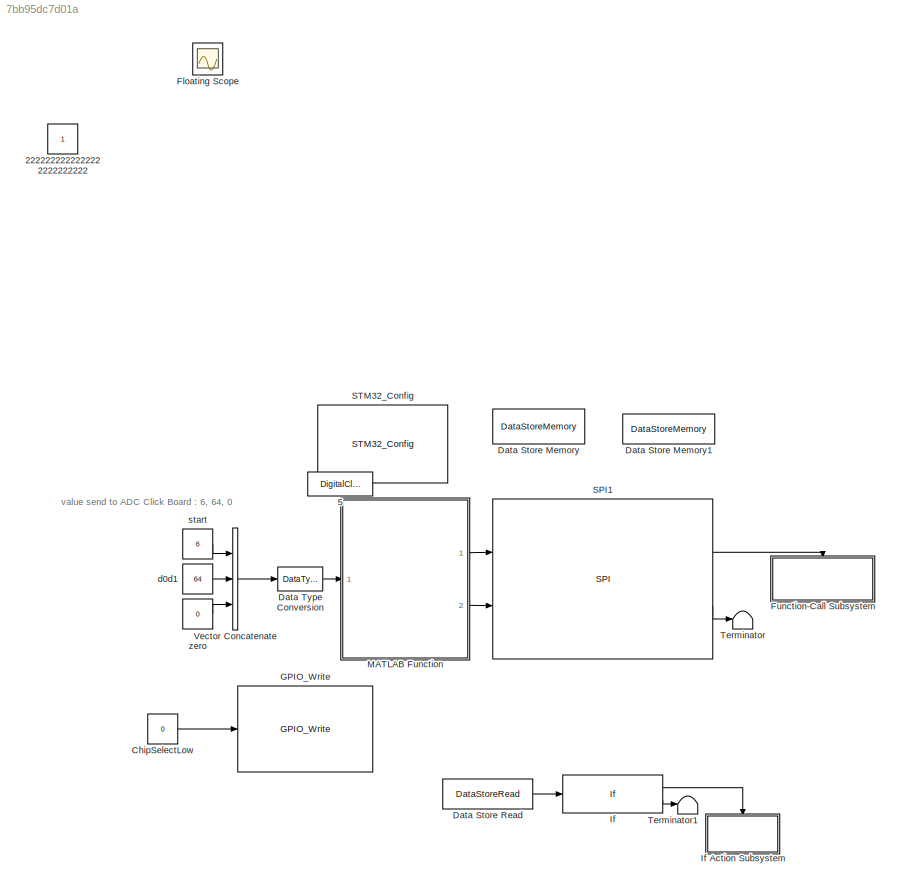
MODEL slx_7bb95dc7d01a
KIND model
CONFIG AbsTol = auto
CONFIG EnableMultiTasking = on
CONFIG FixedStep = 0.5
CONFIG MaxStep = auto
CONFIG MinStep = auto
CONFIG RelTol = 1e-3
CONFIG SampleTimeConstraint = Unconstrained
CONFIG Solver = FixedStepDiscrete
CONFIG SolverName = FixedStepDiscrete
CONFIG StartTime = 0.0
CONFIG StopTime = 10.0
BLOCK [Constant] 2222222222222222222222222
  IOType = siggen
BLOCK [DigitalClock] 5
  IOType = siggen
BLOCK [Constant] ChipSelectLow
  Value = 0
BLOCK [DataStoreMemory] Data Store Memory
  DataStoreName = SPI_Data_addr
  OutDataTypeStr = uint32
  ReadBeforeWriteMsg = warning
  ShowAdditionalParam = off
  WriteAfterReadMsg = warning
  WriteAfterWriteMsg = warning
BLOCK [DataStoreMemory] Data Store Memory1
  DataStoreName = NbRcv
  OutDataTypeStr = uint16
  ReadBeforeWriteMsg = warning
  ShowAdditionalParam = off
  WriteAfterReadMsg = warning
  WriteAfterWriteMsg = warning
BLOCK [DataStoreRead] Data Store Read
  DataStoreName = NbRcv
  Ports = [0, 1]
BLOCK [DataTypeConversion] Data Type Conversion
  OutDataTypeStr = uint8
  RndMeth = Floor
  SaturateOnIntegerOverflow = off
BLOCK [Scope] Floating Scope
  Floating = off
  IOType = viewer
  NumInputPorts = 1
  Ports = []
  ScopeSpecificationString = C++SS(StrPVP('Location','[376, 294, 700, 533]'),StrPVP('Open','off'),MxPVP('AxesTitles',53,'struct(''axes1'',''%<SignalLabel>'')'),MxPVP('ScopeGraphics',56,'struct(''FigureColor'',''[0.5 0.5 0.5]'',''AxesColor'',''[0 0 0]'',''AxesTickColor'',''[1 1 1]'',''LineColors'',''[1 1 0;1 0 1;0 1 1;1 0 0;0 1 0;0 0 1]'',''LineStyles'',''-|-|-|-|-|-'',''LineWidths'',''[0.5 0.5 0.5 0.5 0.5 0.5]'',''MarkerStyle...<+239ch>
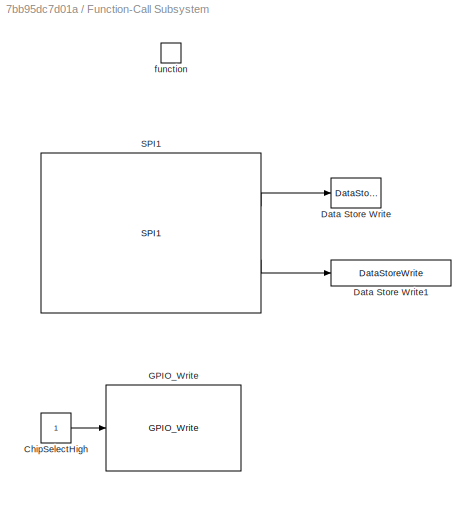
BLOCK [SubSystem] Function-Call Subsystem
  Ports = [0, 0, 0, 1]
  RequestExecContextInheritance = off
  TreatAsAtomicUnit = on
BLOCK [Constant] Function-Call Subsystem/ChipSelectHigh
BLOCK [DataStoreWrite] Function-Call Subsystem/Data Store Write
  DataStoreName = NbRcv
  Ports = [1]
BLOCK [DataStoreWrite] Function-Call Subsystem/Data Store Write1
  DataStoreName = SPI_Data_addr
  Ports = [1]
BLOCK [Reference] Function-Call Subsystem/GPIO_Write  REF=GPIO_Lib/GPIO_Write
  Ports = [1]
  SourceBlock = GPIO_Lib/GPIO_Write
  SourceProductName = Target Support Package - STM32 Adapter
  SourceType = GPIO_Write
BLOCK [Reference] Function-Call Subsystem/SPI1  REF=SPI_Lib/SPI1
  Ports = [0, 2]
  SourceBlock = SPI_Lib/SPI1
  SourceProductName = Target Support Package - STM32 Adapter
  SourceType = SPI
BLOCK [TriggerPort] Function-Call Subsystem/function
  Ports = []
  StatesWhenEnabling = held
  TriggerType = function-call
  VariantControl = Variant
BLOCK [Reference] GPIO_Write  REF=GPIO_Lib/GPIO_Write
  Ports = [1]
  Priority = 1
  SourceBlock = GPIO_Lib/GPIO_Write
  SourceProductName = Target Support Package - STM32 Adapter
  SourceType = GPIO_Write
BLOCK [If] If
  Ports = [1, 2]
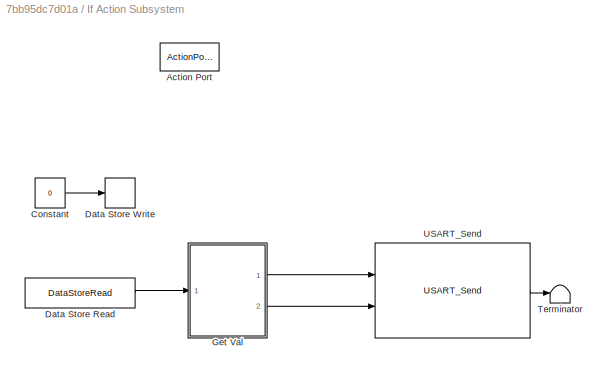
BLOCK [SubSystem] If Action Subsystem
  Ports = [0, 0, 0, 0, 0, 0, 0, 1]
  RequestExecContextInheritance = off
  TreatAsAtomicUnit = on
BLOCK [ActionPort] If Action Subsystem/Action Port
  ActionType = then
BLOCK [Constant] If Action Subsystem/Constant
  OutDataTypeStr = uint16
  Value = 0
BLOCK [DataStoreRead] If Action Subsystem/Data Store Read
  DataStoreName = SPI_Data_addr
  Ports = [0, 1]
BLOCK [DataStoreWrite] If Action Subsystem/Data Store Write
  DataStoreName = NbRcv
  Ports = [1]
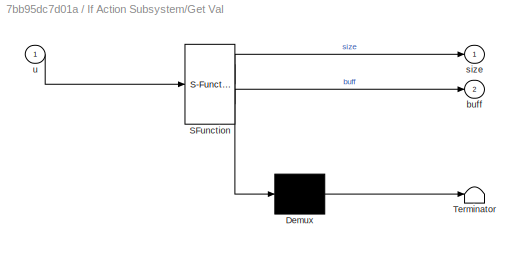
BLOCK [SubSystem] If Action Subsystem/Get Val
  ErrorFcn = Stateflow.Translate.translate
  PermitHierarchicalResolution = ExplicitOnly
  Ports = [1, 2]
  RequestExecContextInheritance = off
  SFBlockType = MATLAB Function
  TreatAsAtomicUnit = on
BLOCK [Demux] If Action Subsystem/Get Val/ Demux 
  Outputs = 1
  Ports = [1, 1]
BLOCK [S-Function] If Action Subsystem/Get Val/ SFunction 
  EnableBusSupport = on
  FunctionName = sf_sfun
  PortCounts = [1 3]
  Ports = [1, 3]
  SFcnIsStateOwnerBlock = off
  SFunctionDeploymentMode = off
  Tag = Stateflow S-Function SPI_Test 1
BLOCK [Terminator] If Action Subsystem/Get Val/ Terminator 
BLOCK [Outport] If Action Subsystem/Get Val/buff
  IconDisplay = Port number
  Port = 2
BLOCK [Outport] If Action Subsystem/Get Val/size
  IconDisplay = Port number
BLOCK [Inport] If Action Subsystem/Get Val/u
  IconDisplay = Port number
BLOCK [Terminator] If Action Subsystem/Terminator
BLOCK [Reference] If Action Subsystem/USART_Send  REF=USART_Lib/USART_Send
  Ports = [2, 1]
  SourceBlock = USART_Lib/USART_Send
  SourceProductName = Target Support Package - STM32 Adapter
  SourceType = USART_Send
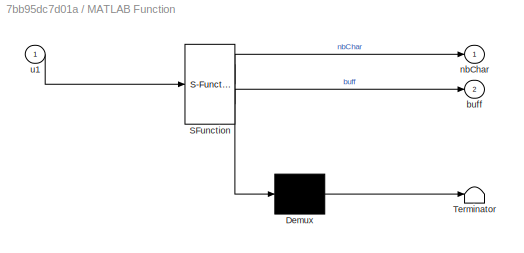
BLOCK [SubSystem] MATLAB Function
  AttributesFormatString = SystemSampleTime=%<SystemSampleTime>
  ErrorFcn = Stateflow.Translate.translate
  PermitHierarchicalResolution = ExplicitOnly
  Ports = [1, 2]
  Priority = 0
  RequestExecContextInheritance = off
  SFBlockType = MATLAB Function
  TreatAsAtomicUnit = on
BLOCK [Demux] MATLAB Function/ Demux 
  Outputs = 1
  Ports = [1, 1]
BLOCK [S-Function] MATLAB Function/ SFunction 
  EnableBusSupport = on
  FunctionName = sf_sfun
  PortCounts = [1 3]
  Ports = [1, 3]
  SFcnIsStateOwnerBlock = off
  SFunctionDeploymentMode = off
  Tag = Stateflow S-Function SPI_Test 2
BLOCK [Terminator] MATLAB Function/ Terminator 
BLOCK [Outport] MATLAB Function/buff
  IconDisplay = Port number
  Port = 2
BLOCK [Outport] MATLAB Function/nbChar
  IconDisplay = Port number
BLOCK [Inport] MATLAB Function/u1
  IconDisplay = Port number
BLOCK [Reference] SPI1  REF=SPI_Lib/SPI
  Ports = [2, 2]
  Priority = 2
  SourceBlock = SPI_Lib/SPI
  SourceProductName = Target Support Package - STM32 Adapter
  SourceType = SPI
BLOCK [Reference] STM32_Config  REF=STM32_Config_Lib/STM32_Config
  Ports = []
  Priority = 0
  SourceBlock = STM32_Config_Lib/STM32_Config
  SourceProductName = Target Support Package - STM32 Adapter
  SourceType = STM32_Config
BLOCK [Terminator] Terminator
BLOCK [Terminator] Terminator1
BLOCK [Concatenate] Vector Concatenate
  NumInputs = 3
  Ports = [3, 1]
BLOCK [Constant] d0d1
  OutDataTypeStr = uint8
  Value = 64
BLOCK [Constant] start
  OutDataTypeStr = uint8
  Value = 6
BLOCK [Constant] zero
  OutDataTypeStr = uint8
  Value = 0
ANNOTATION (root): value send to ADC Click Board : 6, 64, 0
LINE ChipSelectLow:1 -> GPIO_Write:1
LINE Data Store Read:1 -> If:1
LINE Data Type Conversion:1 -> MATLAB Function:1
LINE Function-Call Subsystem/ChipSelectHigh:1 -> Function-Call Subsystem/GPIO_Write:1
LINE Function-Call Subsystem/SPI1:1 -> Function-Call Subsystem/Data Store Write:1
LINE Function-Call Subsystem/SPI1:2 -> Function-Call Subsystem/Data Store Write1:1
LINE If Action Subsystem/Constant:1 -> If Action Subsystem/Data Store Write:1
LINE If Action Subsystem/Data Store Read:1 -> If Action Subsystem/Get Val:1
LINE If Action Subsystem/Get Val:1 -> If Action Subsystem/USART_Send:1
LINE If Action Subsystem/Get Val:2 -> If Action Subsystem/USART_Send:2
LINE If Action Subsystem/USART_Send:1 -> If Action Subsystem/Terminator:1
LINE If:1 -> If Action Subsystem:ifaction
LINE If:2 -> Terminator1:1
LINE MATLAB Function:1 -> SPI1:1
LINE MATLAB Function:2 -> SPI1:2
LINE SPI1:1 -> Function-Call Subsystem:trigger
LINE SPI1:2 -> Terminator:1
LINE Vector Concatenate:1 -> Data Type Conversion:1
LINE d0d1:1 -> Vector Concatenate:2
LINE start:1 -> Vector Concatenate:1
LINE zero:1 -> Vector Concatenate:3
CHART If Action
Subsystem/Get Val states=1 transitions=1
  STATE_LABEL 'eML_blk_kernel()'
  STATE_LABEL "SCRIPT:\nfunction [size, buff] = GetVal(u)\nif coder.target('Sfun')\n    % Executing in MATLAB, Buff is null\n    buff = uint32(0);\n    size = uint16(0);\nelse\n    coder.cinclude('getSpiDataValue.h');\n\n    % Executing in the generated code.\n    buff = coder.ceval('getSpiDataValue',u);\n    size = uint16(20);\nend\n"
CHART MATLAB Function states=1 transitions=1
  STATE_LABEL 'eML_blk_kernel()'
  STATE_LABEL "SCRIPT:\nfunction [nbChar, buff] = generateBuff(u1)\nif coder.target('Sfun')\n    % Executing in MATLAB, Buff is null\n    buff = uint32(0);\n    nbChar = uint16(0);\nelse\n    coder.cinclude('getBuffPtr.h');\n\n    % Executing in the generated code.\n    buff = uint32(0);\n    buff = coder.ceval('getBuffPtr',uint8(u1));\n    [nbChar,~] = size(u1);\n    nbChar = uint16(nbChar);\nend\nend\n"
